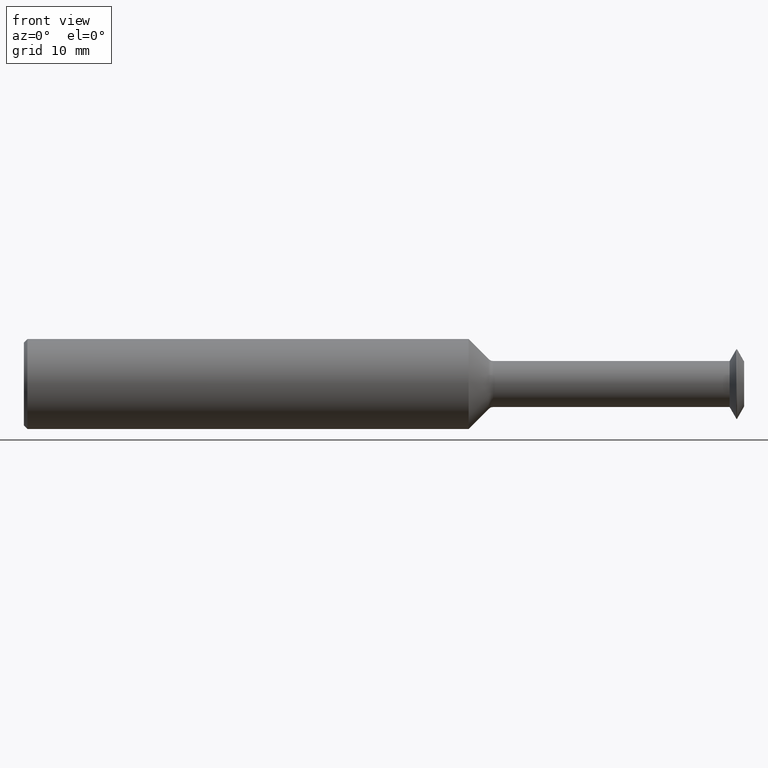
[diagram: clean part render]
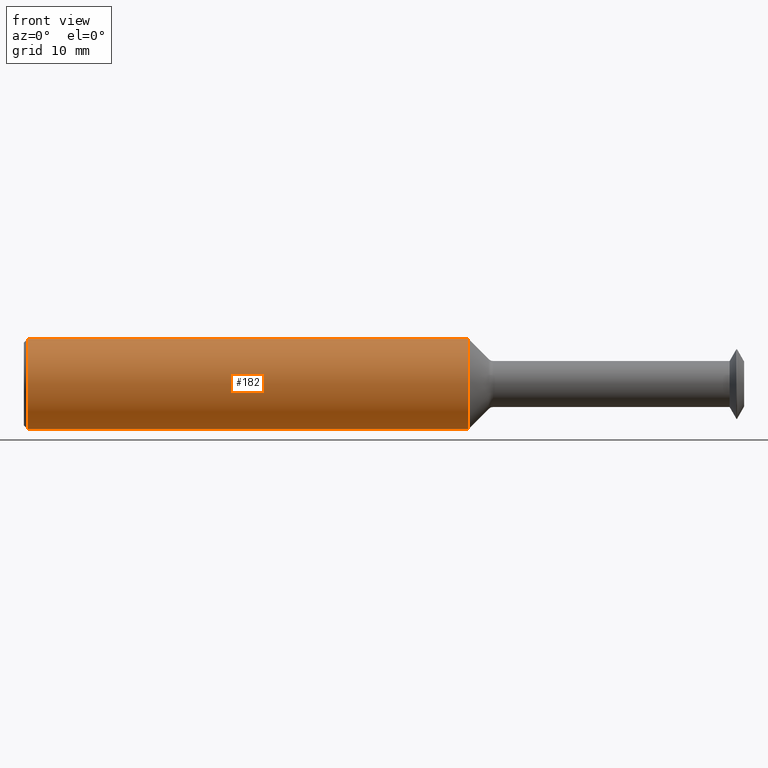
[diagram: same view with one face highlighted and labeled with its STEP entity id]
A machine part, front view. The second image highlights one B-rep face of the part: STEP entity #182.
In plain terms, the highlighted cylindrical surface (partial cylindrical patch) has radius 4.7587 mm, axis along (-1, -0, -0).
Its self-contained STEP definition (entity closure, byte-faithful):
#39 = CIRCLE ( 'NONE', #328, 0.1873499999999999888 ) ;
#44 = DIRECTION ( 'NONE',  ( -1.000000000000000000, -0.0000000000000000000, -0.0000000000000000000 ) ) ;
#53 = CARTESIAN_POINT ( 'NONE',  ( 0.01499999999999953280, 0.0000000000000000000, 0.1873499999999999888 ) ) ;
#68 = VERTEX_POINT ( 'NONE', #348 ) ;
#72 = VERTEX_POINT ( 'NONE', #319 ) ;
#80 = DIRECTION ( 'NONE',  ( -1.000000000000000000, -0.0000000000000000000, -0.0000000000000000000 ) ) ;
#97 = DIRECTION ( 'NONE',  ( 0.0000000000000000000, 0.0000000000000000000, 1.000000000000000000 ) ) ;
#101 = CARTESIAN_POINT ( 'NONE',  ( 0.01499999999999953280, 0.0000000000000000000, 0.0000000000000000000 ) ) ;
#103 = VERTEX_POINT ( 'NONE', #437 ) ;
#108 = DIRECTION ( 'NONE',  ( 0.0000000000000000000, 0.0000000000000000000, -1.000000000000000000 ) ) ;
#128 = EDGE_CURVE ( 'NONE', #406, #72, #39, .T. ) ;
#140 = CARTESIAN_POINT ( 'NONE',  ( 0.0000000000000000000, 0.0000000000000000000, 0.0000000000000000000 ) ) ;
#151 = AXIS2_PLACEMENT_3D ( 'NONE', #491, #80, #97 ) ;
#154 = ORIENTED_EDGE ( 'NONE', *, *, #179, .T. ) ;
#179 = EDGE_CURVE ( 'NONE', #103, #406, #315, .T. ) ;
#182 = ADVANCED_FACE ( 'NONE', ( #287 ), #413, .T. ) ;
#205 = AXIS2_PLACEMENT_3D ( 'NONE', #140, #44, #485 ) ;
#211 = EDGE_LOOP ( 'NONE', ( #495, #259, #154, #399 ) ) ;
#216 = CARTESIAN_POINT ( 'NONE',  ( 0.0000000000000000000, 2.294375778202566330E-17, -0.1873499999999999888 ) ) ;
#220 = DIRECTION ( 'NONE',  ( -1.000000000000000000, -0.0000000000000000000, -0.0000000000000000000 ) ) ;
#222 = CIRCLE ( 'NONE', #151, 0.1873499999999999888 ) ;
#259 = ORIENTED_EDGE ( 'NONE', *, *, #420, .T. ) ;
#287 = FACE_OUTER_BOUND ( 'NONE', #211, .T. ) ;
#302 = CARTESIAN_POINT ( 'NONE',  ( 0.0000000000000000000, 0.0000000000000000000, 0.1873499999999999888 ) ) ;
#315 = LINE ( 'NONE', #302, #477 ) ;
#319 = CARTESIAN_POINT ( 'NONE',  ( 0.01499999999999953280, 2.294375778202566330E-17, -0.1873499999999999888 ) ) ;
#328 = AXIS2_PLACEMENT_3D ( 'NONE', #101, #435, #108 ) ;
#346 = LINE ( 'NONE', #216, #438 ) ;
#348 = CARTESIAN_POINT ( 'NONE',  ( 1.852559026713177293, 2.294375778202565714E-17, -0.1873499999999999888 ) ) ;
#396 = DIRECTION ( 'NONE',  ( -1.000000000000000000, -0.0000000000000000000, -0.0000000000000000000 ) ) ;
#399 = ORIENTED_EDGE ( 'NONE', *, *, #128, .T. ) ;
#406 = VERTEX_POINT ( 'NONE', #53 ) ;
#413 = CYLINDRICAL_SURFACE ( 'NONE', #205, 0.1873499999999999888 ) ;
#420 = EDGE_CURVE ( 'NONE', #68, #103, #222, .T. ) ;
#435 = DIRECTION ( 'NONE',  ( 1.000000000000000000, 0.0000000000000000000, 0.0000000000000000000 ) ) ;
#437 = CARTESIAN_POINT ( 'NONE',  ( 1.852559026713177293, 0.0000000000000000000, 0.1873499999999999888 ) ) ;
#438 = VECTOR ( 'NONE', #220, 39.37007874015748143 ) ;
#468 = EDGE_CURVE ( 'NONE', #68, #72, #346, .T. ) ;
#477 = VECTOR ( 'NONE', #396, 39.37007874015748143 ) ;
#485 = DIRECTION ( 'NONE',  ( 0.0000000000000000000, 0.0000000000000000000, 1.000000000000000000 ) ) ;
#491 = CARTESIAN_POINT ( 'NONE',  ( 1.852559026713177293, 0.0000000000000000000, 0.0000000000000000000 ) ) ;
#495 = ORIENTED_EDGE ( 'NONE', *, *, #468, .F. ) ;